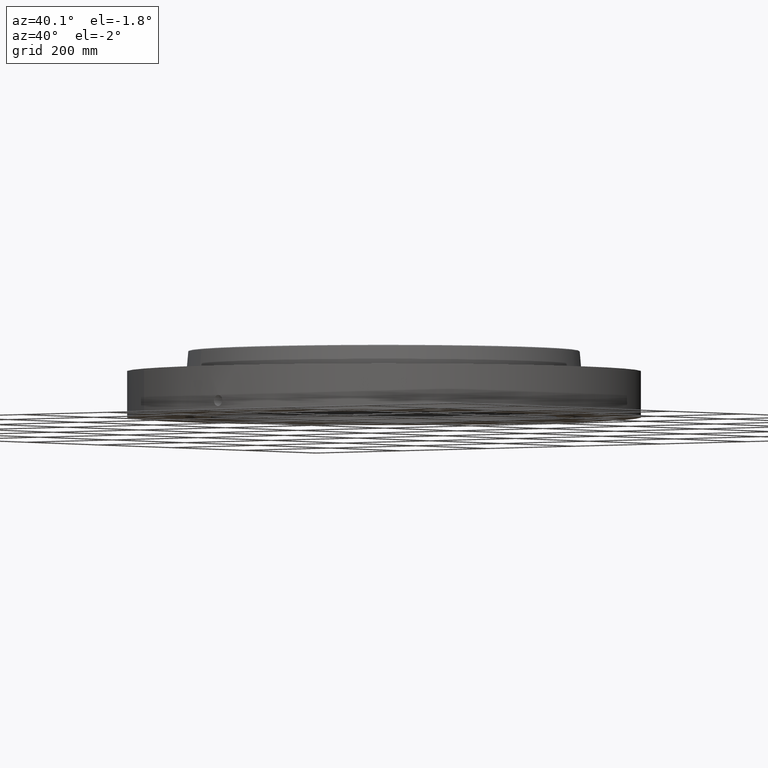
[diagram: clean part render]
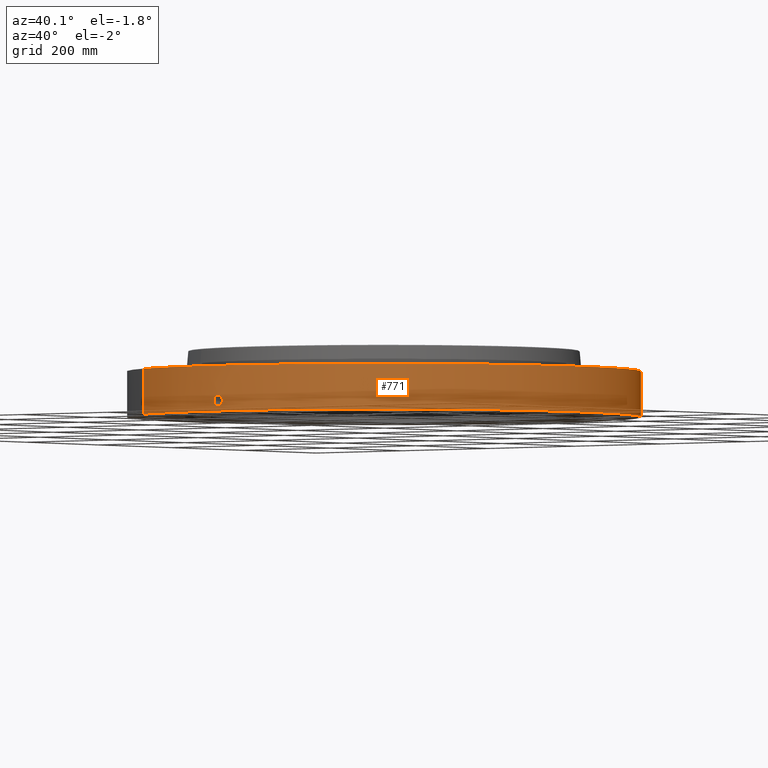
[diagram: same view with one face highlighted and labeled with its STEP entity id]
A machine part, auxiliary view. The second image highlights one B-rep face of the part: STEP entity #771.
In plain terms, the highlighted cylindrical surface (partial cylindrical patch) has radius 457.2 mm, axis along (0, 0, -1).
Its self-contained STEP definition (entity closure, byte-faithful):
#38=AXIS2_PLACEMENT_3D('Cylinder Axis2P3D',#35,#36,#37) ;
#169=AXIS2_PLACEMENT_3D('Circle Axis2P3D',#167,#168,$) ;
#675=AXIS2_PLACEMENT_3D('Circle Axis2P3D',#673,#674,$) ;
#35=CARTESIAN_POINT('Axis2P3D Location',(0.,7.99652833788E-018,2.31400000001)) ;
#44=CARTESIAN_POINT('Vertex',(-8.62965969491,-15.7964861141,2.79741234551E-015)) ;
#46=CARTESIAN_POINT('Vertex',(8.62965969491,15.7964861141,2.79741234551E-015)) ;
#49=CARTESIAN_POINT('Line Origine',(-8.62965969491,-15.7964861141,1.59400000001)) ;
#53=CARTESIAN_POINT('Vertex',(-8.62965969491,-15.7964861141,3.18800000001)) ;
#60=CARTESIAN_POINT('Vertex',(8.62965969491,15.7964861141,3.18800000001)) ;
#63=CARTESIAN_POINT('Line Origine',(8.62965969491,15.7964861141,1.59400000001)) ;
#167=CARTESIAN_POINT('Axis2P3D Location',(0.,0.,0.)) ;
#673=CARTESIAN_POINT('Axis2P3D Location',(0.,7.99652833788E-018,3.18800000001)) ;
#685=CARTESIAN_POINT('Control Point',(0.000715915817136,-17.9999999858,1.10411846164)) ;
#686=CARTESIAN_POINT('Control Point',(0.0187947751755,-17.9999992668,1.10408195945)) ;
#687=CARTESIAN_POINT('Control Point',(0.0368705075568,-17.9999710998,1.10265734483)) ;
#688=CARTESIAN_POINT('Control Point',(0.0547316879153,-17.9999167899,1.09986143831)) ;
#689=CARTESIAN_POINT('Vertex',(0.000715616834734,-17.9999999858,1.1041185108)) ;
#691=CARTESIAN_POINT('Vertex',(0.0547231270419,-17.9999170666,1.09986279593)) ;
#695=CARTESIAN_POINT('Control Point',(0.0547230336828,-17.9999168163,1.09986225491)) ;
#696=CARTESIAN_POINT('Control Point',(0.0953738721711,-17.9997932303,1.0955253014)) ;
#697=CARTESIAN_POINT('Control Point',(0.135409963768,-17.9995285051,1.08380448315)) ;
#698=CARTESIAN_POINT('Control Point',(0.172317078189,-17.9991751707,1.06545477222)) ;
#699=CARTESIAN_POINT('Vertex',(0.172317078189,-17.9991751707,1.06545477222)) ;
#703=CARTESIAN_POINT('Control Point',(0.0311783936623,-17.9999729975,0.341201554701)) ;
#704=CARTESIAN_POINT('Control Point',(0.0718023860248,-17.9999026312,0.346338154804)) ;
#705=CARTESIAN_POINT('Control Point',(0.111634366925,-17.9997190315,0.356728865126)) ;
#706=CARTESIAN_POINT('Control Point',(0.149741462245,-17.9994324968,0.372218515442)) ;
#707=CARTESIAN_POINT('Control Point',(0.239620226164,-17.9985293285,0.423169811773)) ;
#708=CARTESIAN_POINT('Control Point',(0.308806134208,-17.9974126645,0.500006051802)) ;
#709=CARTESIAN_POINT('Control Point',(0.340722239375,-17.9967939013,0.553754679058)) ;
#710=CARTESIAN_POINT('Control Point',(0.375373742209,-17.9960901164,0.651059745735)) ;
#711=CARTESIAN_POINT('Control Point',(0.377750082567,-17.9960345674,0.752362754964)) ;
#712=CARTESIAN_POINT('Control Point',(0.373383171161,-17.9961284648,0.792905036548)) ;
#713=CARTESIAN_POINT('Control Point',(0.350799822569,-17.9966011621,0.885745538719)) ;
#714=CARTESIAN_POINT('Control Point',(0.300979264868,-17.9975215935,0.967334231444)) ;
#715=CARTESIAN_POINT('Control Point',(0.264028493137,-17.9981368943,1.00844211587)) ;
#716=CARTESIAN_POINT('Control Point',(0.220353828564,-17.9987152856,1.04157155423)) ;
#717=CARTESIAN_POINT('Control Point',(0.172317078189,-17.9991751707,1.06545477222)) ;
#718=CARTESIAN_POINT('Vertex',(0.0311783936623,-17.9999729975,0.341201554701)) ;
#722=CARTESIAN_POINT('Control Point',(0.0311783936623,-17.9999729975,0.341201554701)) ;
#723=CARTESIAN_POINT('Control Point',(0.0207809624426,-17.9999910073,0.340876352055)) ;
#724=CARTESIAN_POINT('Control Point',(0.0103753705657,-18.0000000016,0.340934236825)) ;
#725=CARTESIAN_POINT('Control Point',(-2.72878354562E-006,-18.0000000001,0.341374667805)) ;
#726=CARTESIAN_POINT('Vertex',(-2.72878354443E-006,-18.0000000001,0.341374667805)) ;
#730=CARTESIAN_POINT('Control Point',(-0.192490992805,-17.9989707267,0.397658904987)) ;
#731=CARTESIAN_POINT('Control Point',(-0.148953545882,-17.9994363403,0.372184959082)) ;
#732=CARTESIAN_POINT('Control Point',(-0.101107472268,-17.9998082665,0.353830456271)) ;
#733=CARTESIAN_POINT('Control Point',(-0.0508027268676,-17.9999999924,0.343530542641)) ;
#734=CARTESIAN_POINT('Control Point',(-2.72878354563E-006,-18.0000000001,0.341374667805)) ;
#735=CARTESIAN_POINT('Vertex',(-0.192490992805,-17.9989707267,0.397658904987)) ;
#739=CARTESIAN_POINT('Control Point',(-0.192490992805,-17.9989707267,0.397658904987)) ;
#740=CARTESIAN_POINT('Control Point',(-0.249225178658,-17.9983639798,0.430854317827)) ;
#741=CARTESIAN_POINT('Control Point',(-0.299118743533,-17.9976068264,0.475382524651)) ;
#742=CARTESIAN_POINT('Control Point',(-0.339016915445,-17.9968404543,0.529620409631)) ;
#743=CARTESIAN_POINT('Control Point',(-0.382904710898,-17.995934997,0.62793695989)) ;
#744=CARTESIAN_POINT('Control Point',(-0.391223249634,-17.9957468036,0.733210691964)) ;
#745=CARTESIAN_POINT('Control Point',(-0.389017371439,-17.9957960738,0.773429056791)) ;
#746=CARTESIAN_POINT('Control Point',(-0.369349083161,-17.996227637,0.876435322504)) ;
#747=CARTESIAN_POINT('Control Point',(-0.315771039597,-17.9972807015,0.967179509976)) ;
#748=CARTESIAN_POINT('Control Point',(-0.271217884518,-17.9980645595,1.01479234364)) ;
#749=CARTESIAN_POINT('Control Point',(-0.190427074368,-17.999138768,1.07072540779)) ;
#750=CARTESIAN_POINT('Control Point',(-0.0985096365579,-17.9997740425,1.09789396463)) ;
#751=CARTESIAN_POINT('Control Point',(-0.0657534082135,-17.9999256069,1.10368532934)) ;
#752=CARTESIAN_POINT('Control Point',(-0.0327250619869,-18.0000000471,1.10575873)) ;
#753=CARTESIAN_POINT('Control Point',(2.58579355424E-005,-18.0000000001,1.10415298429)) ;
#754=CARTESIAN_POINT('Vertex',(2.5857935548E-005,-18.0000000001,1.10415298429)) ;
#758=CARTESIAN_POINT('Control Point',(0.000715616825267,-17.9999999858,1.10411851078)) ;
#759=CARTESIAN_POINT('Control Point',(0.000370762017586,-17.9999999996,1.10413607398)) ;
#760=CARTESIAN_POINT('Control Point',(2.5857940433E-005,-18.0000000001,1.10415298429)) ;
#36=DIRECTION('Axis2P3D Direction',(0.,0.,-0.0393700787402)) ;
#37=DIRECTION('Axis2P3D XDirection',(0.0188750212049,0.0345504945626,0.)) ;
#50=DIRECTION('Vector Direction',(0.,0.,-0.0393700787402)) ;
#64=DIRECTION('Vector Direction',(0.,0.,-0.0393700787402)) ;
#168=DIRECTION('Axis2P3D Direction',(0.,0.,-0.0393700787402)) ;
#674=DIRECTION('Axis2P3D Direction',(0.,0.,-0.0393700787402)) ;
#51=VECTOR('Line Direction',#50,0.0393700787402) ;
#65=VECTOR('Line Direction',#64,0.0393700787402) ;
#679=ORIENTED_EDGE('',*,*,#171,.F.) ;
#680=ORIENTED_EDGE('',*,*,#67,.T.) ;
#681=ORIENTED_EDGE('',*,*,#677,.T.) ;
#682=ORIENTED_EDGE('',*,*,#55,.F.) ;
#763=ORIENTED_EDGE('',*,*,#693,.T.) ;
#764=ORIENTED_EDGE('',*,*,#701,.T.) ;
#765=ORIENTED_EDGE('',*,*,#720,.F.) ;
#766=ORIENTED_EDGE('',*,*,#728,.T.) ;
#767=ORIENTED_EDGE('',*,*,#737,.F.) ;
#768=ORIENTED_EDGE('',*,*,#756,.T.) ;
#769=ORIENTED_EDGE('',*,*,#761,.F.) ;
#770=FACE_BOUND('',#762,.T.) ;
#771=ADVANCED_FACE('PartBody',(#683,#770),#39,.T.) ;
#684=B_SPLINE_CURVE_WITH_KNOTS('',3,(#685,#686,#687,#688),.UNSPECIFIED.,.F.,.U.,(4,4),(34.616785022,36.6224624319),.UNSPECIFIED.) ;
#694=B_SPLINE_CURVE_WITH_KNOTS('',3,(#695,#696,#697,#698),.UNSPECIFIED.,.F.,.U.,(4,4),(0.,4.59362931806),.UNSPECIFIED.) ;
#702=B_SPLINE_CURVE_WITH_KNOTS('',5,(#703,#704,#705,#706,#707,#708,#709,#710,#711,#712,#713,#714,#715,#716,#717),.UNSPECIFIED.,.F.,.U.,(6,3,3,3,6),(0.,7.11615215727,18.0025267991,25.3409788287,35.3057709314),.UNSPECIFIED.) ;
#721=B_SPLINE_CURVE_WITH_KNOTS('',3,(#722,#723,#724,#725),.UNSPECIFIED.,.F.,.U.,(4,4),(0.,1.08463276567),.UNSPECIFIED.) ;
#729=B_SPLINE_CURVE_WITH_KNOTS('',4,(#730,#731,#732,#733,#734),.UNSPECIFIED.,.F.,.U.,(5,5),(0.,7.07892527536),.UNSPECIFIED.) ;
#738=B_SPLINE_CURVE_WITH_KNOTS('',5,(#739,#740,#741,#742,#743,#744,#745,#746,#747,#748,#749,#750,#751,#752,#753),.UNSPECIFIED.,.F.,.U.,(6,3,3,3,6),(0.,11.5307937886,18.6312441742,30.1312289499,36.2530557792),.UNSPECIFIED.) ;
#757=B_SPLINE_CURVE_WITH_KNOTS('',2,(#758,#759,#760),.UNSPECIFIED.,.F.,.U.,(3,3),(1.01704389407,1.04283178801),.UNSPECIFIED.) ;
#170=CIRCLE('generated circle',#169,18.0000000001) ;
#676=CIRCLE('generated circle',#675,18.0000000001) ;
#39=CYLINDRICAL_SURFACE('generated cylinder',#38,18.0000000001) ;
#55=EDGE_CURVE('',#45,#54,#52,.F.) ;
#67=EDGE_CURVE('',#47,#61,#66,.F.) ;
#171=EDGE_CURVE('',#47,#45,#170,.T.) ;
#677=EDGE_CURVE('',#61,#54,#676,.T.) ;
#693=EDGE_CURVE('',#690,#692,#684,.T.) ;
#701=EDGE_CURVE('',#692,#700,#694,.T.) ;
#720=EDGE_CURVE('',#719,#700,#702,.T.) ;
#728=EDGE_CURVE('',#719,#727,#721,.T.) ;
#737=EDGE_CURVE('',#736,#727,#729,.T.) ;
#756=EDGE_CURVE('',#736,#755,#738,.T.) ;
#761=EDGE_CURVE('',#690,#755,#757,.T.) ;
#678=EDGE_LOOP('',(#679,#680,#681,#682)) ;
#762=EDGE_LOOP('',(#763,#764,#765,#766,#767,#768,#769)) ;
#683=FACE_OUTER_BOUND('',#678,.T.) ;
#52=LINE('Line',#49,#51) ;
#66=LINE('Line',#63,#65) ;
#45=VERTEX_POINT('',#44) ;
#47=VERTEX_POINT('',#46) ;
#54=VERTEX_POINT('',#53) ;
#61=VERTEX_POINT('',#60) ;
#690=VERTEX_POINT('',#689) ;
#692=VERTEX_POINT('',#691) ;
#700=VERTEX_POINT('',#699) ;
#719=VERTEX_POINT('',#718) ;
#727=VERTEX_POINT('',#726) ;
#736=VERTEX_POINT('',#735) ;
#755=VERTEX_POINT('',#754) ;